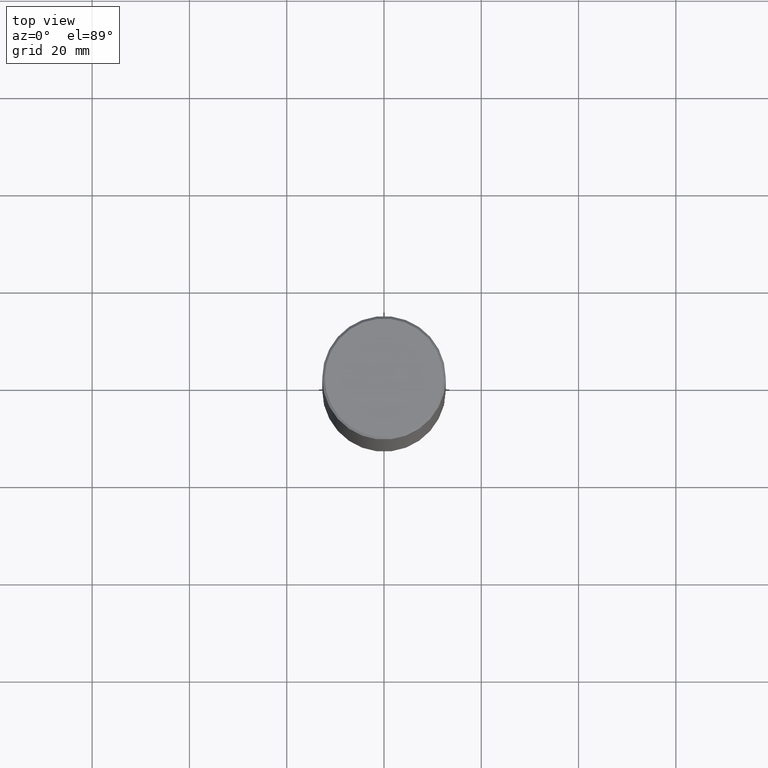
[diagram: clean part render]
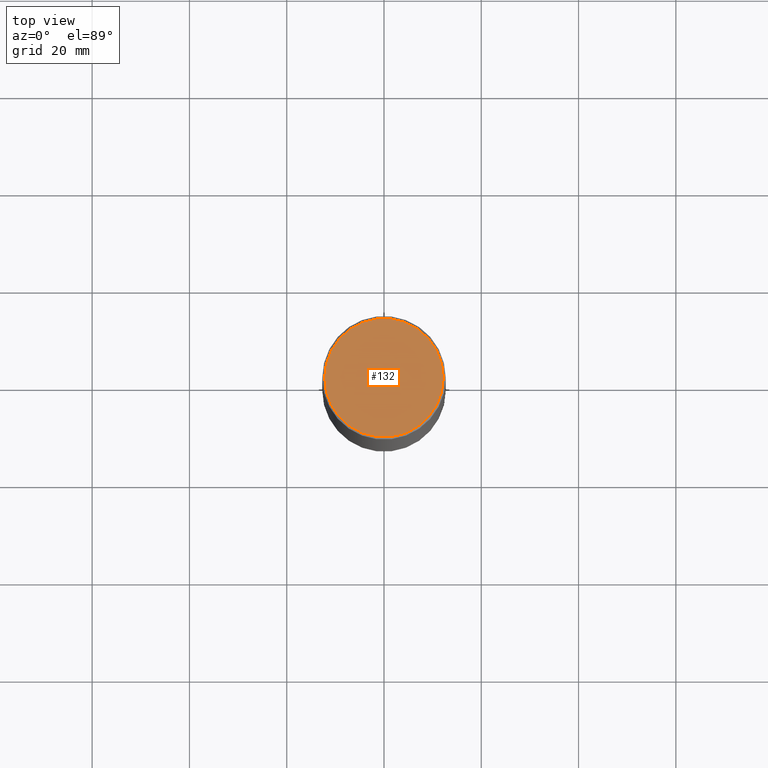
[diagram: same view with one face highlighted and labeled with its STEP entity id]
A machine part, top view. The second image highlights one B-rep face of the part: STEP entity #132.
In plain terms, the highlighted planar face has unit normal (0, -0, -1).
Its self-contained STEP definition (entity closure, byte-faithful):
#20 = CARTESIAN_POINT ( 'NONE',  ( -0.4799999999999999267, 3.386736898677839197E-15, 1.195183497227879609E-16 ) ) ;
#25 = FACE_OUTER_BOUND ( 'NONE', #166, .T. ) ;
#48 = VERTEX_POINT ( 'NONE', #20 ) ;
#57 = DIRECTION ( 'NONE',  ( 1.000000000000000000, -6.982962677686266711E-15, 4.874852205035277589E-29 ) ) ;
#66 = AXIS2_PLACEMENT_3D ( 'NONE', #356, #385, #89 ) ;
#81 = AXIS2_PLACEMENT_3D ( 'NONE', #187, #258, #412 ) ;
#89 = DIRECTION ( 'NONE',  ( -1.000000000000000000, 6.982962677686265922E-15, -4.876176775795935793E-29 ) ) ;
#101 = CIRCLE ( 'NONE', #413, 0.4799999999999999267 ) ;
#132 = ADVANCED_FACE ( 'NONE', ( #25 ), #282, .F. ) ;
#166 = EDGE_LOOP ( 'NONE', ( #168, #250 ) ) ;
#168 = ORIENTED_EDGE ( 'NONE', *, *, #194, .T. ) ;
#187 = CARTESIAN_POINT ( 'NONE',  ( -2.922783960138615261E-45, 4.172960877065252270E-31, 1.195183497228115035E-16 ) ) ;
#194 = EDGE_CURVE ( 'NONE', #48, #374, #101, .T. ) ;
#233 = CARTESIAN_POINT ( 'NONE',  ( -2.922783960138615261E-45, 4.172960877065252270E-31, 1.195183497228115035E-16 ) ) ;
#238 = EDGE_CURVE ( 'NONE', #374, #48, #267, .T. ) ;
#250 = ORIENTED_EDGE ( 'NONE', *, *, #238, .T. ) ;
#258 = DIRECTION ( 'NONE',  ( -2.445468806185136597E-29, 3.491481338843145583E-15, 1.000000000000000000 ) ) ;
#267 = CIRCLE ( 'NONE', #81, 0.4799999999999999267 ) ;
#282 = PLANE ( 'NONE',  #66 ) ;
#317 = DIRECTION ( 'NONE',  ( -2.445468806185136597E-29, 3.491481338843145583E-15, 1.000000000000000000 ) ) ;
#356 = CARTESIAN_POINT ( 'NONE',  ( 3.351822085289407153E-15, 0.4799999999999999267, -1.616151867783303914E-15 ) ) ;
#360 = CARTESIAN_POINT ( 'NONE',  ( 0.4799999999999999267, -3.396558832296482099E-15, 1.195183497228351200E-16 ) ) ;
#374 = VERTEX_POINT ( 'NONE', #360 ) ;
#385 = DIRECTION ( 'NONE',  ( 2.438088387897960049E-29, -3.491481338843145188E-15, -1.000000000000000000 ) ) ;
#412 = DIRECTION ( 'NONE',  ( 1.000000000000000000, -6.982962677686266711E-15, 4.874852205035277589E-29 ) ) ;
#413 = AXIS2_PLACEMENT_3D ( 'NONE', #233, #317, #57 ) ;